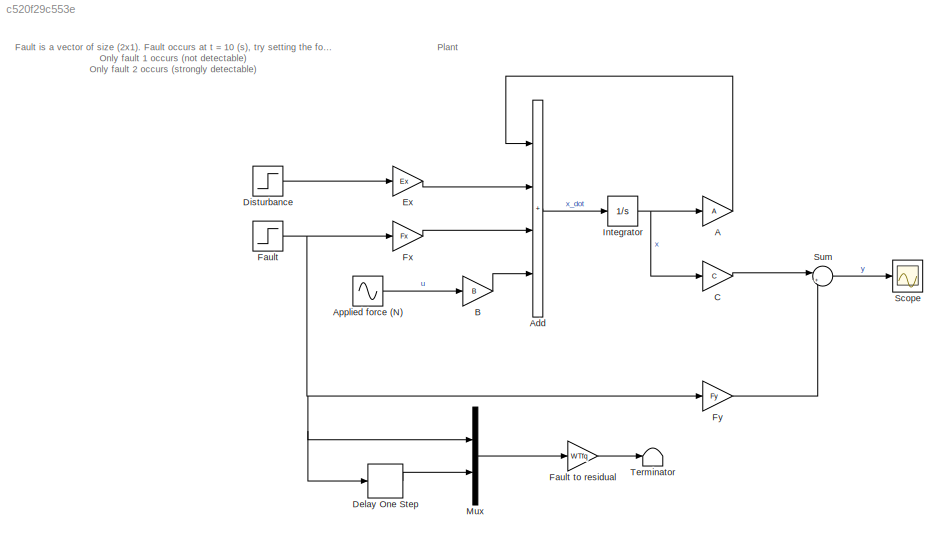
MODEL slx_c520f29c553e
KIND model
CONFIG AbsTol = auto
CONFIG EnableMultiTasking = off
CONFIG FixedStep = auto
CONFIG MaxStep = auto
CONFIG MinStep = auto
CONFIG RelTol = 1e-3
CONFIG SampleTimeConstraint = Unconstrained
CONFIG SolverName = VariableStepAuto
CONFIG StartTime = 0.0
CONFIG StopTime = 20
BLOCK [Gain] A
  Gain = A
  Multiplication = Matrix(K*u)
BLOCK [Sum] Add
  IconShape = rectangular
  Inputs = ++++
BLOCK [Sin] Applied force (N)
  Amplitude = 2
  Frequency = 0.5
  SampleTime = 0
BLOCK [Gain] B
  Gain = B
BLOCK [Gain] C
  Gain = C
  Multiplication = Matrix(K*u)
BLOCK [Delay] Delay One Step
  DelayLength = 1
  InputPortMap = u0
BLOCK [Step] Disturbance
  After = 0.12
  SampleTime = 0
  Time = 10
BLOCK [Gain] Ex
  Gain = Ex
  Multiplication = Matrix(K*u)
BLOCK [Step] Fault
  After = [0; 0.5]
  Before = [0; 0]
  SampleTime = 0
  Time = 10
BLOCK [Gain] Fault to residual
  Gain = WTfq
  Multiplication = Matrix(K*u)
BLOCK [Gain] Fx
  Gain = Fx
  Multiplication = Matrix(K*u)
BLOCK [Gain] Fy
  Gain = Fy
  Multiplication = Matrix(K*u)
BLOCK [Integrator] Integrator
  InitialCondition = X0
BLOCK [Mux] Mux
  DisplayOption = bar
  Inputs = 2
BLOCK [Scope] Scope
  Floating = off
  NumInputPorts = 1
  ScopeSpecificationString = Simulink.scopes.TimeScopeBlockCfg('CurrentConfiguration', extmgr.ConfigurationSet(extmgr.Configuration('Core','General UI',true),extmgr.Configuration('Core','Source UI',true),extmgr.Configuration('Sources','WiredSimulink',true),extmgr.Configuration('Visuals','Time Domain',true,'SerializedDisplays',{struct('MinYLimReal','-0.83703','MaxYLimReal','2.05082','YLabelReal','','MinYLimMag','0.00000','MaxY...<+1424ch>
BLOCK [Sum] Sum
  Inputs = |++
BLOCK [Terminator] Terminator
ANNOTATION (root): Fault is a vector of size (2x1). Fault occurs at t = 10 (s), try setting the following scenarios to see how good our parity matrix is: Only fault 1 occurs (not detectable) Only fault 2 occurs (strongly detectable)
ANNOTATION (root): Plant
LINE A:1 -> Add:1
LINE Add:1 -> Integrator:1
LINE Applied force (N):1 -> B:1
LINE B:1 -> Add:4
LINE C:1 -> Sum:1
LINE Delay One Step:1 -> Mux:2
LINE Disturbance:1 -> Ex:1
LINE Ex:1 -> Add:2
LINE Fault to residual:1 -> Terminator:1
NET Fault:1 -> Delay One Step:1, Fx:1, Fy:1, Mux:1
LINE Fx:1 -> Add:3
LINE Fy:1 -> Sum:2
NET Integrator:1 -> A:1, C:1
LINE Mux:1 -> Fault to residual:1
LINE Sum:1 -> Scope:1
note: NET lines group one-source signal fan-out (src -> all destinations, sorted); 1:1 wires keep LINE
